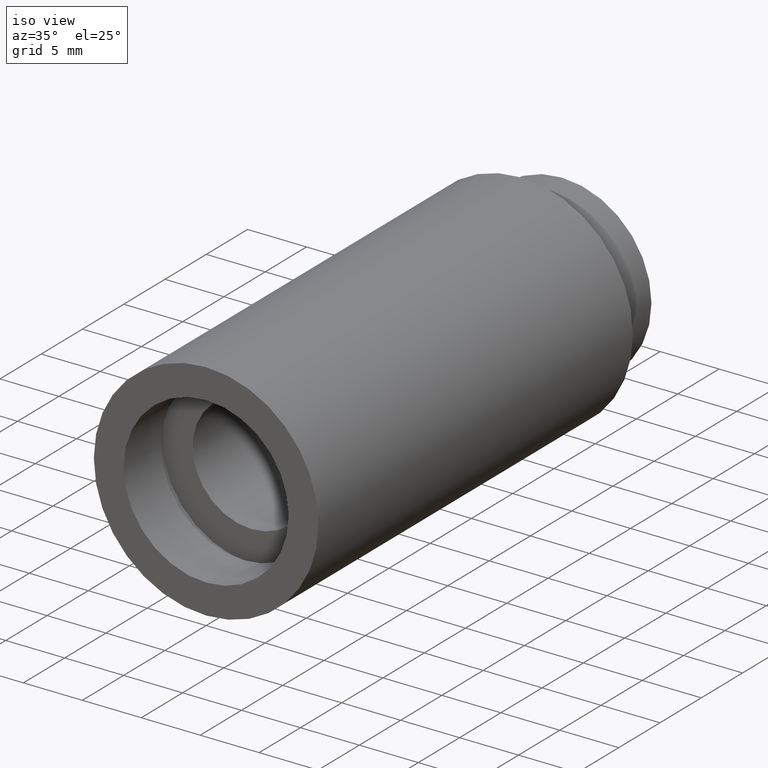
[diagram: clean part render]
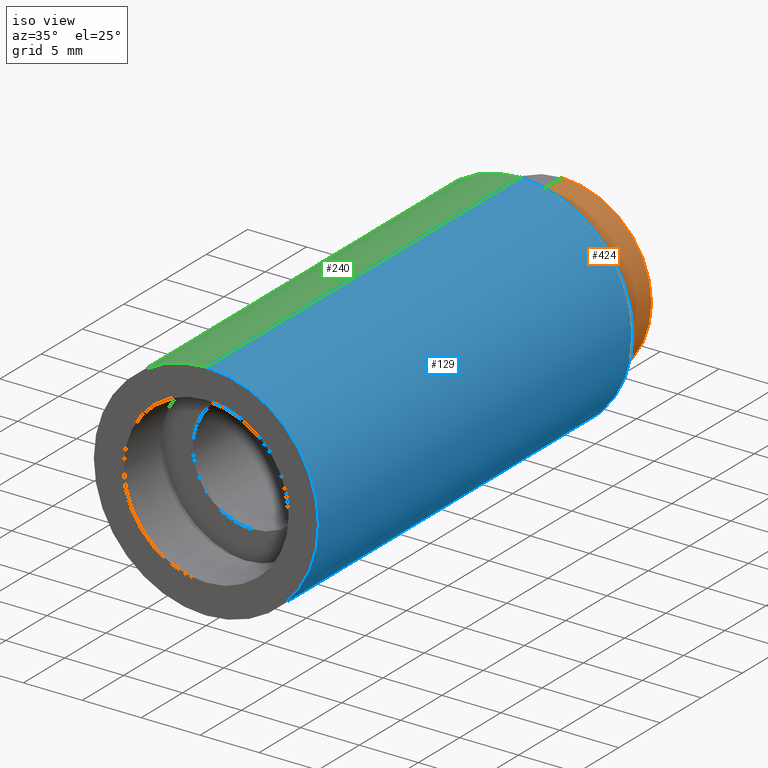
[diagram: same view with three faces highlighted in distinct colors, each labeled with its STEP entity id]
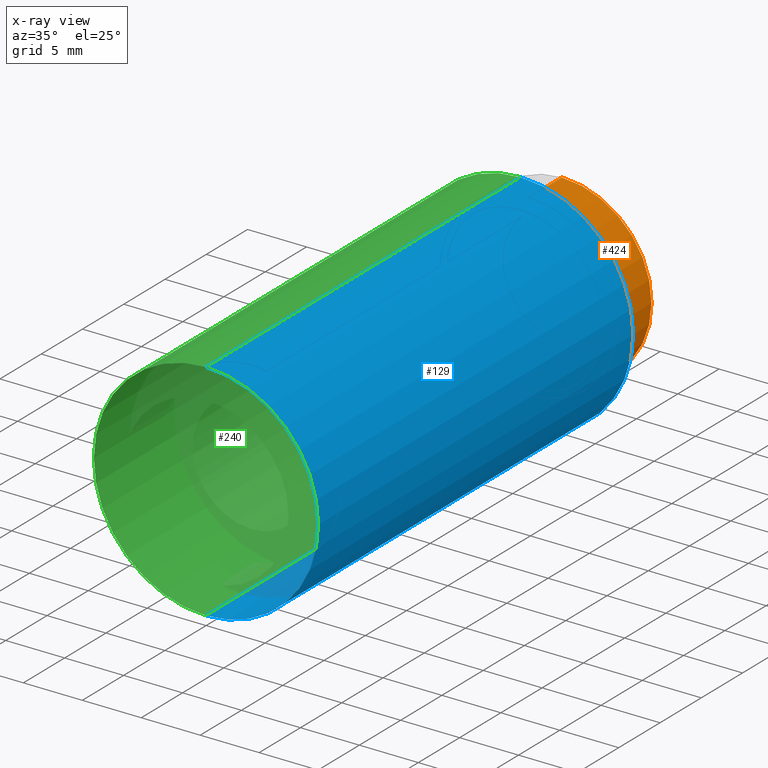
[diagram: x-ray of the same camera — body ghosted, the three highlighted faces saturated]
A machine part, iso view with three faces highlighted in distinct colors.
The next image is the same camera in x-ray (body ghosted, the three faces saturated) — at least one of them is partly hidden behind the body in this view.
Their STEP definitions:

[orange] entity #424 — the highlighted cylindrical surface (partial cylindrical patch) has radius 7.6 mm, axis along (-0, 1, -0).
#21 = CIRCLE ( 'NONE', #411, 7.600000000000013000 ) ;
#32 = CIRCLE ( 'NONE', #445, 7.600000000000013000 ) ;
#34 = DIRECTION ( 'NONE',  ( -0.0000000000000000000, 1.000000000000000000, -0.0000000000000000000 ) ) ;
#43 = VERTEX_POINT ( 'NONE', #597 ) ;
#47 = CARTESIAN_POINT ( 'NONE',  ( 9.307315673519899300E-016, 39.09999999999999400, -7.600000000000013000 ) ) ;
#58 = LINE ( 'NONE', #438, #172 ) ;
#90 = CARTESIAN_POINT ( 'NONE',  ( 9.307315673519899300E-016, 43.09999999999998700, -7.600000000000013000 ) ) ;
#93 = CARTESIAN_POINT ( 'NONE',  ( 0.0000000000000000000, 43.09999999999998700, 0.0000000000000000000 ) ) ;
#96 = ORIENTED_EDGE ( 'NONE', *, *, #342, .F. ) ;
#101 = FACE_OUTER_BOUND ( 'NONE', #550, .T. ) ;
#154 = EDGE_CURVE ( 'NONE', #346, #218, #393, .T. ) ;
#155 = ORIENTED_EDGE ( 'NONE', *, *, #345, .F. ) ;
#172 = VECTOR ( 'NONE', #488, 1000.000000000000000 ) ;
#210 = DIRECTION ( 'NONE',  ( -0.0000000000000000000, 1.000000000000000000, -0.0000000000000000000 ) ) ;
#217 = CYLINDRICAL_SURFACE ( 'NONE', #395, 7.600000000000013000 ) ;
#218 = VERTEX_POINT ( 'NONE', #90 ) ;
#222 = DIRECTION ( 'NONE',  ( -0.0000000000000000000, 1.000000000000000000, -0.0000000000000000000 ) ) ;
#235 = ORIENTED_EDGE ( 'NONE', *, *, #501, .T. ) ;
#342 = EDGE_CURVE ( 'NONE', #43, #218, #32, .T. ) ;
#345 = EDGE_CURVE ( 'NONE', #390, #43, #58, .T. ) ;
#346 = VERTEX_POINT ( 'NONE', #47 ) ;
#361 = DIRECTION ( 'NONE',  ( 0.0000000000000000000, 0.0000000000000000000, 1.000000000000000000 ) ) ;
#365 = CARTESIAN_POINT ( 'NONE',  ( 0.0000000000000000000, 39.09999999999999400, 0.0000000000000000000 ) ) ;
#390 = VERTEX_POINT ( 'NONE', #392 ) ;
#392 = CARTESIAN_POINT ( 'NONE',  ( 0.0000000000000000000, 39.09999999999999400, 7.600000000000013000 ) ) ;
#393 = LINE ( 'NONE', #460, #506 ) ;
#395 = AXIS2_PLACEMENT_3D ( 'NONE', #397, #210, #548 ) ;
#397 = CARTESIAN_POINT ( 'NONE',  ( 0.0000000000000000000, 161.3761669434274500, 0.0000000000000000000 ) ) ;
#411 = AXIS2_PLACEMENT_3D ( 'NONE', #365, #222, #361 ) ;
#424 = ADVANCED_FACE ( 'NONE', ( #101 ), #217, .T. ) ;
#434 = DIRECTION ( 'NONE',  ( -0.0000000000000000000, 1.000000000000000000, -0.0000000000000000000 ) ) ;
#438 = CARTESIAN_POINT ( 'NONE',  ( 0.0000000000000000000, 161.3761669434274500, 7.600000000000013000 ) ) ;
#445 = AXIS2_PLACEMENT_3D ( 'NONE', #93, #434, #532 ) ;
#460 = CARTESIAN_POINT ( 'NONE',  ( 9.307315673519899300E-016, 161.3761669434274500, -7.600000000000013000 ) ) ;
#488 = DIRECTION ( 'NONE',  ( -0.0000000000000000000, 1.000000000000000000, -0.0000000000000000000 ) ) ;
#501 = EDGE_CURVE ( 'NONE', #390, #346, #21, .T. ) ;
#506 = VECTOR ( 'NONE', #34, 1000.000000000000000 ) ;
#532 = DIRECTION ( 'NONE',  ( 0.0000000000000000000, 0.0000000000000000000, 1.000000000000000000 ) ) ;
#548 = DIRECTION ( 'NONE',  ( 0.0000000000000000000, 0.0000000000000000000, 1.000000000000000000 ) ) ;
#550 = EDGE_LOOP ( 'NONE', ( #235, #576, #96, #155 ) ) ;
#576 = ORIENTED_EDGE ( 'NONE', *, *, #154, .T. ) ;
#597 = CARTESIAN_POINT ( 'NONE',  ( 0.0000000000000000000, 43.09999999999998700, 7.600000000000013000 ) ) ;

[blue] entity #129 — the highlighted cylindrical surface (partial cylindrical patch) has radius 9.525 mm, axis along (-0, 1, -0).
#15 = LINE ( 'NONE', #415, #77 ) ;
#16 = VERTEX_POINT ( 'NONE', #64 ) ;
#36 = DIRECTION ( 'NONE',  ( -0.0000000000000000000, 1.000000000000000000, -0.0000000000000000000 ) ) ;
#38 = AXIS2_PLACEMENT_3D ( 'NONE', #608, #36, #116 ) ;
#64 = CARTESIAN_POINT ( 'NONE',  ( 0.0000000000000000000, -2.775557561562891400E-014, 9.525000000000019900 ) ) ;
#77 = VECTOR ( 'NONE', #355, 1000.000000000000000 ) ;
#83 = DIRECTION ( 'NONE',  ( -0.0000000000000000000, 1.000000000000000000, -0.0000000000000000000 ) ) ;
#105 = LINE ( 'NONE', #277, #535 ) ;
#109 = EDGE_CURVE ( 'NONE', #16, #186, #486, .T. ) ;
#116 = DIRECTION ( 'NONE',  ( 0.0000000000000000000, 0.0000000000000000000, 1.000000000000000000 ) ) ;
#129 = ADVANCED_FACE ( 'NONE', ( #314 ), #549, .T. ) ;
#133 = DIRECTION ( 'NONE',  ( 0.0000000000000000000, 0.0000000000000000000, 1.000000000000000000 ) ) ;
#138 = ORIENTED_EDGE ( 'NONE', *, *, #176, .F. ) ;
#167 = DIRECTION ( 'NONE',  ( 0.0000000000000000000, 0.0000000000000000000, 1.000000000000000000 ) ) ;
#176 = EDGE_CURVE ( 'NONE', #16, #391, #15, .T. ) ;
#181 = EDGE_CURVE ( 'NONE', #186, #476, #105, .T. ) ;
#186 = VERTEX_POINT ( 'NONE', #320 ) ;
#198 = EDGE_CURVE ( 'NONE', #391, #476, #525, .T. ) ;
#204 = AXIS2_PLACEMENT_3D ( 'NONE', #221, #563, #167 ) ;
#221 = CARTESIAN_POINT ( 'NONE',  ( 0.0000000000000000000, 161.3761669434274500, 0.0000000000000000000 ) ) ;
#274 = ORIENTED_EDGE ( 'NONE', *, *, #109, .T. ) ;
#277 = CARTESIAN_POINT ( 'NONE',  ( 1.166476076187856400E-015, 161.3761669434274500, -9.525000000000019900 ) ) ;
#301 = CARTESIAN_POINT ( 'NONE',  ( 0.0000000000000000000, 38.09999999999999400, 9.525000000000019900 ) ) ;
#308 = ORIENTED_EDGE ( 'NONE', *, *, #181, .T. ) ;
#314 = FACE_OUTER_BOUND ( 'NONE', #394, .T. ) ;
#320 = CARTESIAN_POINT ( 'NONE',  ( 1.166476076187856400E-015, -2.775557561562891400E-014, -9.525000000000019900 ) ) ;
#338 = ORIENTED_EDGE ( 'NONE', *, *, #198, .F. ) ;
#355 = DIRECTION ( 'NONE',  ( -0.0000000000000000000, 1.000000000000000000, -0.0000000000000000000 ) ) ;
#391 = VERTEX_POINT ( 'NONE', #301 ) ;
#394 = EDGE_LOOP ( 'NONE', ( #274, #308, #338, #138 ) ) ;
#415 = CARTESIAN_POINT ( 'NONE',  ( 0.0000000000000000000, 161.3761669434274500, 9.525000000000019900 ) ) ;
#476 = VERTEX_POINT ( 'NONE', #562 ) ;
#486 = CIRCLE ( 'NONE', #38, 9.525000000000019900 ) ;
#525 = CIRCLE ( 'NONE', #620, 9.525000000000019900 ) ;
#535 = VECTOR ( 'NONE', #83, 1000.000000000000000 ) ;
#549 = CYLINDRICAL_SURFACE ( 'NONE', #204, 9.525000000000019900 ) ;
#562 = CARTESIAN_POINT ( 'NONE',  ( 1.166476076187856400E-015, 38.09999999999999400, -9.525000000000019900 ) ) ;
#563 = DIRECTION ( 'NONE',  ( -0.0000000000000000000, 1.000000000000000000, -0.0000000000000000000 ) ) ;
#608 = CARTESIAN_POINT ( 'NONE',  ( 0.0000000000000000000, -2.775557561562891400E-014, 0.0000000000000000000 ) ) ;
#617 = DIRECTION ( 'NONE',  ( -0.0000000000000000000, 1.000000000000000000, -0.0000000000000000000 ) ) ;
#620 = AXIS2_PLACEMENT_3D ( 'NONE', #623, #617, #133 ) ;
#623 = CARTESIAN_POINT ( 'NONE',  ( 0.0000000000000000000, 38.09999999999999400, 0.0000000000000000000 ) ) ;

[green] entity #240 — the highlighted cylindrical surface (partial cylindrical patch) has radius 9.525 mm, axis along (-0, 1, -0).
#15 = LINE ( 'NONE', #415, #77 ) ;
#16 = VERTEX_POINT ( 'NONE', #64 ) ;
#17 = ORIENTED_EDGE ( 'NONE', *, *, #176, .T. ) ;
#64 = CARTESIAN_POINT ( 'NONE',  ( 0.0000000000000000000, -2.775557561562891400E-014, 9.525000000000019900 ) ) ;
#65 = CIRCLE ( 'NONE', #87, 9.525000000000019900 ) ;
#77 = VECTOR ( 'NONE', #355, 1000.000000000000000 ) ;
#83 = DIRECTION ( 'NONE',  ( -0.0000000000000000000, 1.000000000000000000, -0.0000000000000000000 ) ) ;
#87 = AXIS2_PLACEMENT_3D ( 'NONE', #229, #611, #233 ) ;
#103 = EDGE_LOOP ( 'NONE', ( #400, #422, #17, #220 ) ) ;
#105 = LINE ( 'NONE', #277, #535 ) ;
#160 = EDGE_CURVE ( 'NONE', #186, #16, #65, .T. ) ;
#176 = EDGE_CURVE ( 'NONE', #16, #391, #15, .T. ) ;
#180 = CARTESIAN_POINT ( 'NONE',  ( 0.0000000000000000000, 38.09999999999999400, 0.0000000000000000000 ) ) ;
#181 = EDGE_CURVE ( 'NONE', #186, #476, #105, .T. ) ;
#183 = DIRECTION ( 'NONE',  ( 0.0000000000000000000, 0.0000000000000000000, 1.000000000000000000 ) ) ;
#186 = VERTEX_POINT ( 'NONE', #320 ) ;
#220 = ORIENTED_EDGE ( 'NONE', *, *, #255, .F. ) ;
#229 = CARTESIAN_POINT ( 'NONE',  ( 0.0000000000000000000, -2.775557561562891400E-014, 0.0000000000000000000 ) ) ;
#233 = DIRECTION ( 'NONE',  ( 0.0000000000000000000, 0.0000000000000000000, 1.000000000000000000 ) ) ;
#238 = CARTESIAN_POINT ( 'NONE',  ( 0.0000000000000000000, 161.3761669434274500, 0.0000000000000000000 ) ) ;
#240 = ADVANCED_FACE ( 'NONE', ( #399 ), #306, .T. ) ;
#255 = EDGE_CURVE ( 'NONE', #476, #391, #268, .T. ) ;
#268 = CIRCLE ( 'NONE', #326, 9.525000000000019900 ) ;
#277 = CARTESIAN_POINT ( 'NONE',  ( 1.166476076187856400E-015, 161.3761669434274500, -9.525000000000019900 ) ) ;
#296 = AXIS2_PLACEMENT_3D ( 'NONE', #238, #569, #471 ) ;
#301 = CARTESIAN_POINT ( 'NONE',  ( 0.0000000000000000000, 38.09999999999999400, 9.525000000000019900 ) ) ;
#306 = CYLINDRICAL_SURFACE ( 'NONE', #296, 9.525000000000019900 ) ;
#320 = CARTESIAN_POINT ( 'NONE',  ( 1.166476076187856400E-015, -2.775557561562891400E-014, -9.525000000000019900 ) ) ;
#326 = AXIS2_PLACEMENT_3D ( 'NONE', #180, #521, #183 ) ;
#355 = DIRECTION ( 'NONE',  ( -0.0000000000000000000, 1.000000000000000000, -0.0000000000000000000 ) ) ;
#391 = VERTEX_POINT ( 'NONE', #301 ) ;
#399 = FACE_OUTER_BOUND ( 'NONE', #103, .T. ) ;
#400 = ORIENTED_EDGE ( 'NONE', *, *, #181, .F. ) ;
#415 = CARTESIAN_POINT ( 'NONE',  ( 0.0000000000000000000, 161.3761669434274500, 9.525000000000019900 ) ) ;
#422 = ORIENTED_EDGE ( 'NONE', *, *, #160, .T. ) ;
#471 = DIRECTION ( 'NONE',  ( 0.0000000000000000000, 0.0000000000000000000, 1.000000000000000000 ) ) ;
#476 = VERTEX_POINT ( 'NONE', #562 ) ;
#521 = DIRECTION ( 'NONE',  ( -0.0000000000000000000, 1.000000000000000000, -0.0000000000000000000 ) ) ;
#535 = VECTOR ( 'NONE', #83, 1000.000000000000000 ) ;
#562 = CARTESIAN_POINT ( 'NONE',  ( 1.166476076187856400E-015, 38.09999999999999400, -9.525000000000019900 ) ) ;
#569 = DIRECTION ( 'NONE',  ( -0.0000000000000000000, 1.000000000000000000, -0.0000000000000000000 ) ) ;
#611 = DIRECTION ( 'NONE',  ( -0.0000000000000000000, 1.000000000000000000, -0.0000000000000000000 ) ) ;